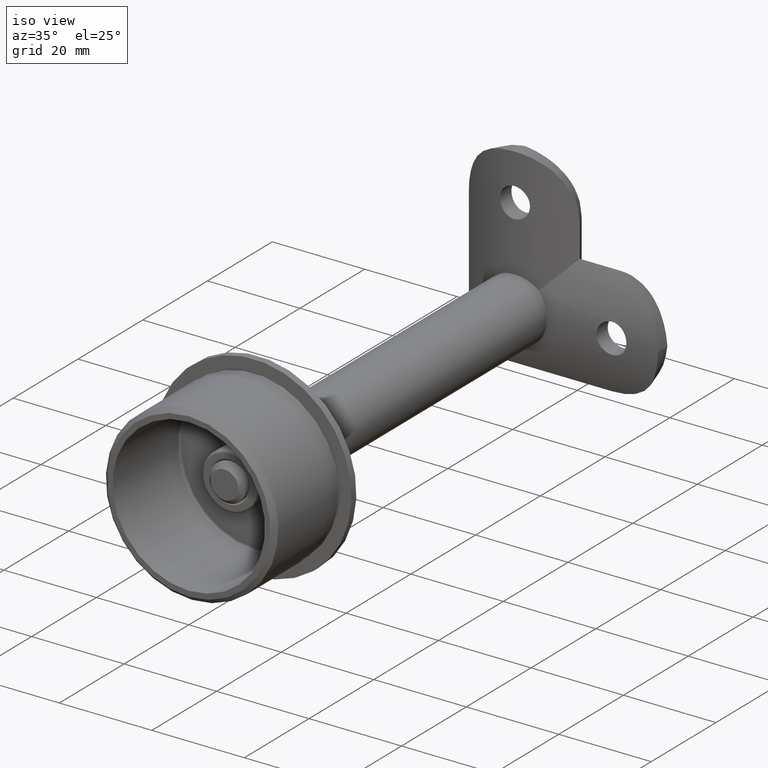
[diagram: clean part render]
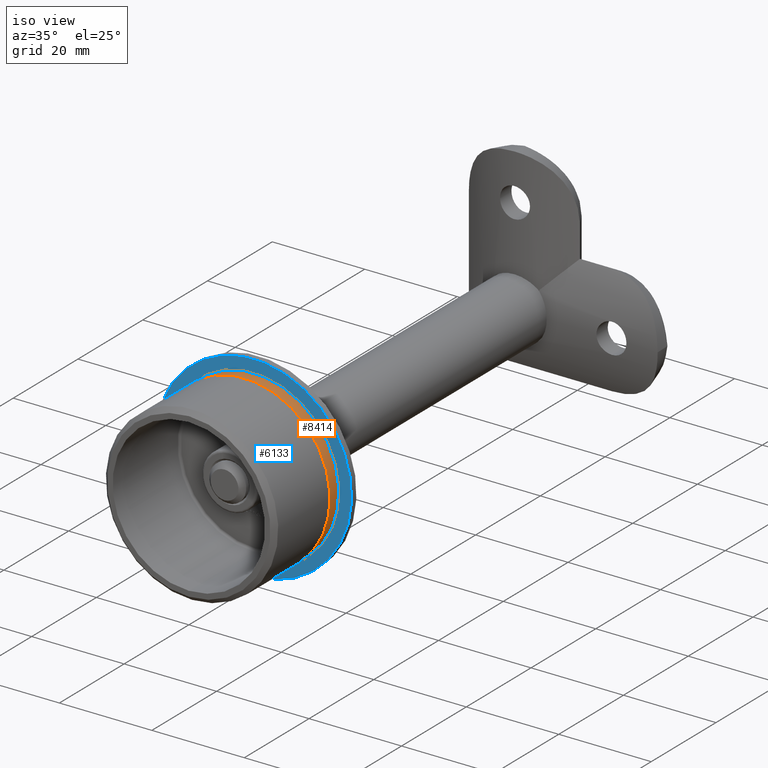
[diagram: same view with the hole feature highlighted: cylindrical wall and planar end face, labeled with their STEP entity ids]
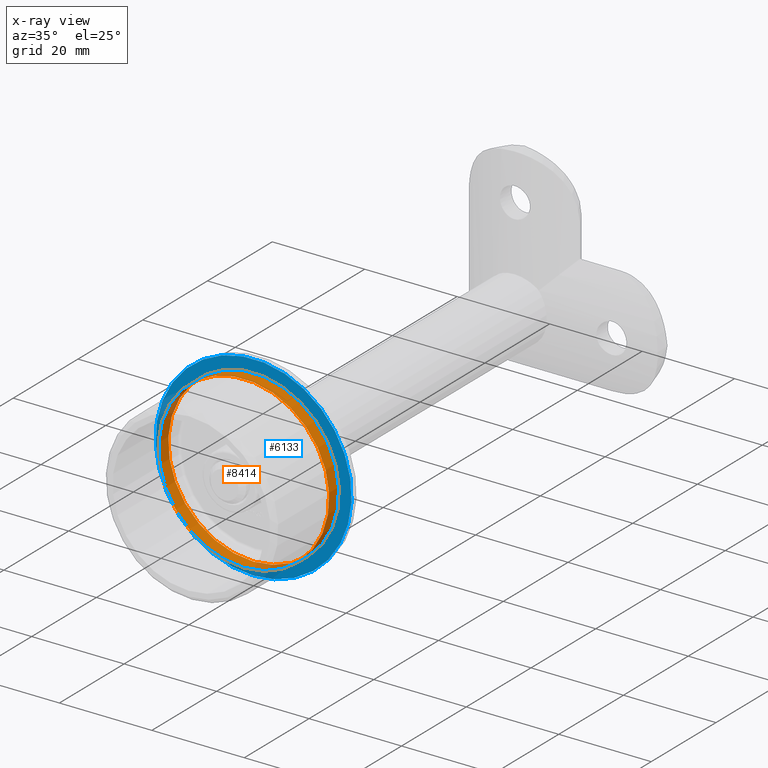
[diagram: x-ray of the same camera — body ghosted, the hole faces saturated]
A machine part, iso view. The highlighted faces form one hole feature of diameter 36.9 mm: the cylindrical wall (entity #8414, orange) and its adjacent planar end face (entity #6133, blue) — they share a circular edge in the B-rep.
The next image is the same camera in x-ray (body ghosted, the hole faces saturated) — the bore reads through the body.
Wall:
#387 = CARTESIAN_POINT ( 'NONE',  ( 0.000000000000000000, 20.00000000000000355, 0.000000000000000000 ) ) ;
#533 = CARTESIAN_POINT ( 'NONE',  ( 0.000000000000000000, 17.00000000000000355, -18.44999999999999929 ) ) ;
#2620 = AXIS2_PLACEMENT_3D ( 'NONE', #13821, #12513, #15467 ) ;
#5150 = EDGE_CURVE ( 'NONE', #16986, #16986, #9460, .T. ) ;
#7252 = DIRECTION ( 'NONE',  ( -0.000000000000000000, -1.000000000000000000, -0.000000000000000000 ) ) ;
#7320 = CARTESIAN_POINT ( 'NONE',  ( 0.000000000000000000, 20.50000000000000000, 0.000000000000000000 ) ) ;
#7826 = FACE_OUTER_BOUND ( 'NONE', #12046, .T. ) ;
#8118 = VERTEX_POINT ( 'NONE', #533 ) ;
#8145 = ORIENTED_EDGE ( 'NONE', *, *, #5150, .T. ) ;
#8414 = ADVANCED_FACE ( 'NONE', ( #19481, #7826 ), #14236, .T. ) ;
#8910 = DIRECTION ( 'NONE',  ( 0.000000000000000000, 0.000000000000000000, -1.000000000000000000 ) ) ;
#9460 = CIRCLE ( 'NONE', #14321, 18.44999999999999929 ) ;
#9491 = EDGE_CURVE ( 'NONE', #8118, #8118, #12251, .T. ) ;
#9622 = ORIENTED_EDGE ( 'NONE', *, *, #9491, .F. ) ;
#9915 = DIRECTION ( 'NONE',  ( 0.000000000000000000, 0.000000000000000000, -1.000000000000000000 ) ) ;
#12046 = EDGE_LOOP ( 'NONE', ( #9622 ) ) ;
#12251 = CIRCLE ( 'NONE', #2620, 18.44999999999999929 ) ;
#12513 = DIRECTION ( 'NONE',  ( -0.000000000000000000, -1.000000000000000000, -0.000000000000000000 ) ) ;
#13007 = DIRECTION ( 'NONE',  ( -0.000000000000000000, -1.000000000000000000, -0.000000000000000000 ) ) ;
#13821 = CARTESIAN_POINT ( 'NONE',  ( 0.000000000000000000, 17.00000000000000355, 0.000000000000000000 ) ) ;
#14236 = CYLINDRICAL_SURFACE ( 'NONE', #15788, 18.44999999999999929 ) ;
#14321 = AXIS2_PLACEMENT_3D ( 'NONE', #387, #13007, #9915 ) ;
#14760 = EDGE_LOOP ( 'NONE', ( #8145 ) ) ;
#15467 = DIRECTION ( 'NONE',  ( 0.000000000000000000, 0.000000000000000000, -1.000000000000000000 ) ) ;
#15788 = AXIS2_PLACEMENT_3D ( 'NONE', #7320, #7252, #8910 ) ;
#16188 = CARTESIAN_POINT ( 'NONE',  ( 0.000000000000000000, 20.00000000000000355, -18.44999999999999929 ) ) ;
#16986 = VERTEX_POINT ( 'NONE', #16188 ) ;
#19481 = FACE_OUTER_BOUND ( 'NONE', #14760, .T. ) ;
End face:
#387 = CARTESIAN_POINT ( 'NONE',  ( 0.000000000000000000, 20.00000000000000355, 0.000000000000000000 ) ) ;
#1661 = CARTESIAN_POINT ( 'NONE',  ( 21.19999999999999574, 20.00000000000000355, 0.000000000000000000 ) ) ;
#4365 = EDGE_LOOP ( 'NONE', ( #4575 ) ) ;
#4565 = AXIS2_PLACEMENT_3D ( 'NONE', #18392, #19848, #13535 ) ;
#4575 = ORIENTED_EDGE ( 'NONE', *, *, #5150, .F. ) ;
#5150 = EDGE_CURVE ( 'NONE', #16986, #16986, #9460, .T. ) ;
#6133 = ADVANCED_FACE ( 'NONE', ( #8393, #17002 ), #9514, .T. ) ;
#6340 = CIRCLE ( 'NONE', #4565, 21.19999999999999574 ) ;
#8382 = EDGE_CURVE ( 'NONE', #17760, #17760, #6340, .T. ) ;
#8393 = FACE_OUTER_BOUND ( 'NONE', #13661, .T. ) ;
#8467 = DIRECTION ( 'NONE',  ( 0.000000000000000000, 0.000000000000000000, -1.000000000000000000 ) ) ;
#9460 = CIRCLE ( 'NONE', #14321, 18.44999999999999929 ) ;
#9514 = PLANE ( 'NONE',  #11031 ) ;
#9915 = DIRECTION ( 'NONE',  ( 0.000000000000000000, 0.000000000000000000, -1.000000000000000000 ) ) ;
#11031 = AXIS2_PLACEMENT_3D ( 'NONE', #1661, #12821, #8467 ) ;
#12821 = DIRECTION ( 'NONE',  ( 0.000000000000000000, -1.000000000000000000, -0.000000000000000000 ) ) ;
#13007 = DIRECTION ( 'NONE',  ( -0.000000000000000000, -1.000000000000000000, -0.000000000000000000 ) ) ;
#13535 = DIRECTION ( 'NONE',  ( 0.000000000000000000, 0.000000000000000000, -1.000000000000000000 ) ) ;
#13661 = EDGE_LOOP ( 'NONE', ( #17065 ) ) ;
#14321 = AXIS2_PLACEMENT_3D ( 'NONE', #387, #13007, #9915 ) ;
#16188 = CARTESIAN_POINT ( 'NONE',  ( 0.000000000000000000, 20.00000000000000355, -18.44999999999999929 ) ) ;
#16986 = VERTEX_POINT ( 'NONE', #16188 ) ;
#17002 = FACE_BOUND ( 'NONE', #4365, .T. ) ;
#17065 = ORIENTED_EDGE ( 'NONE', *, *, #8382, .T. ) ;
#17659 = CARTESIAN_POINT ( 'NONE',  ( 0.000000000000000000, 20.00000000000000355, -21.19999999999999574 ) ) ;
#17760 = VERTEX_POINT ( 'NONE', #17659 ) ;
#18392 = CARTESIAN_POINT ( 'NONE',  ( 0.000000000000000000, 20.00000000000000355, 0.000000000000000000 ) ) ;
#19848 = DIRECTION ( 'NONE',  ( -0.000000000000000000, -1.000000000000000000, -0.000000000000000000 ) ) ;